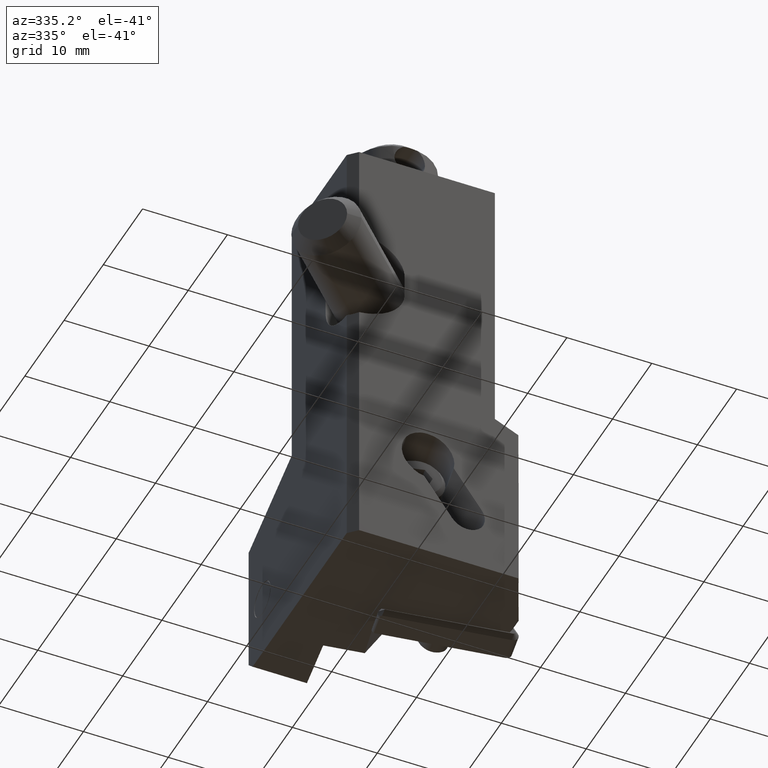
[diagram: clean part render]
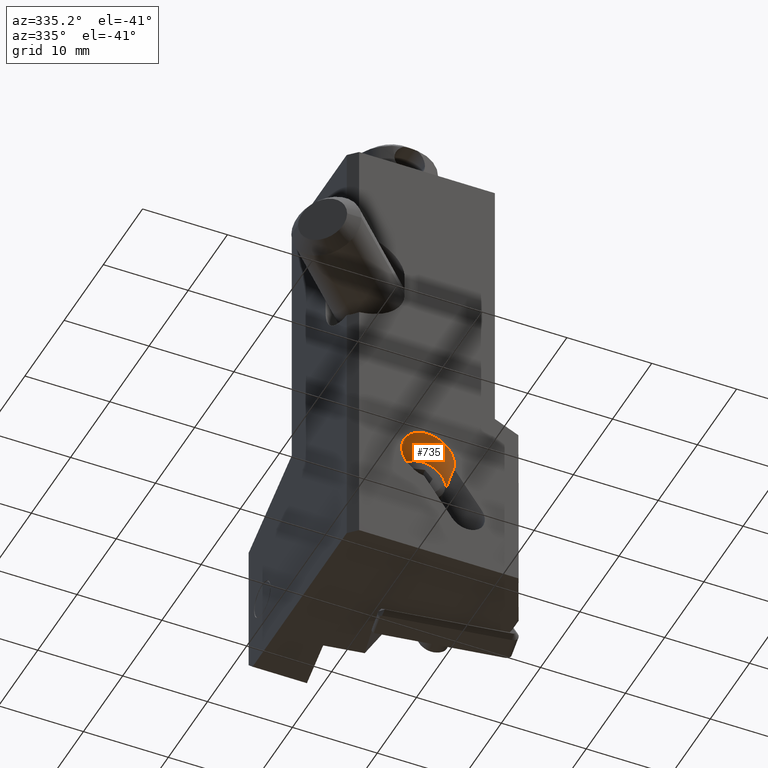
[diagram: same view with one face highlighted and labeled with its STEP entity id]
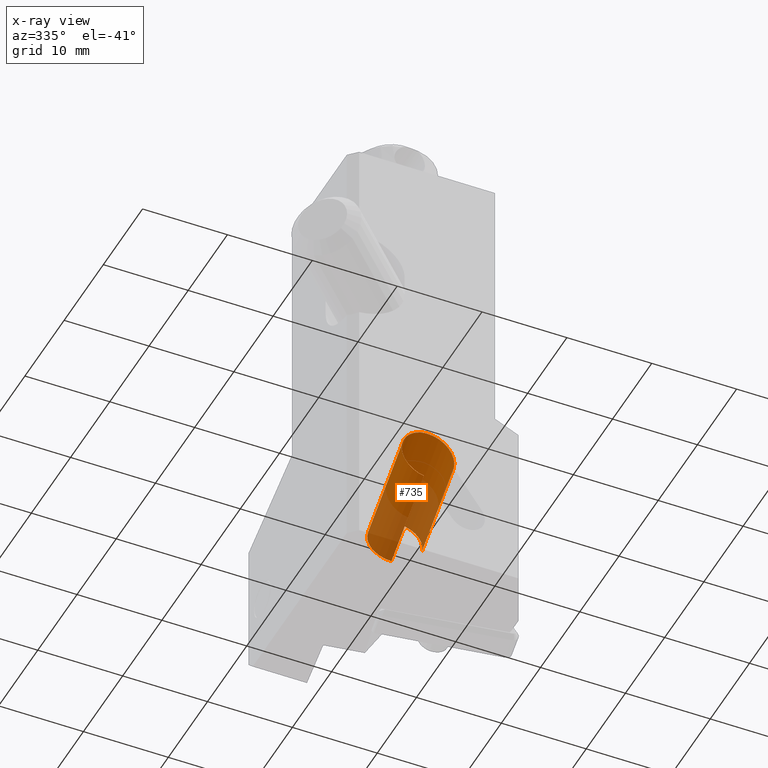
[diagram: x-ray of the same camera — body ghosted, the highlighted face saturated]
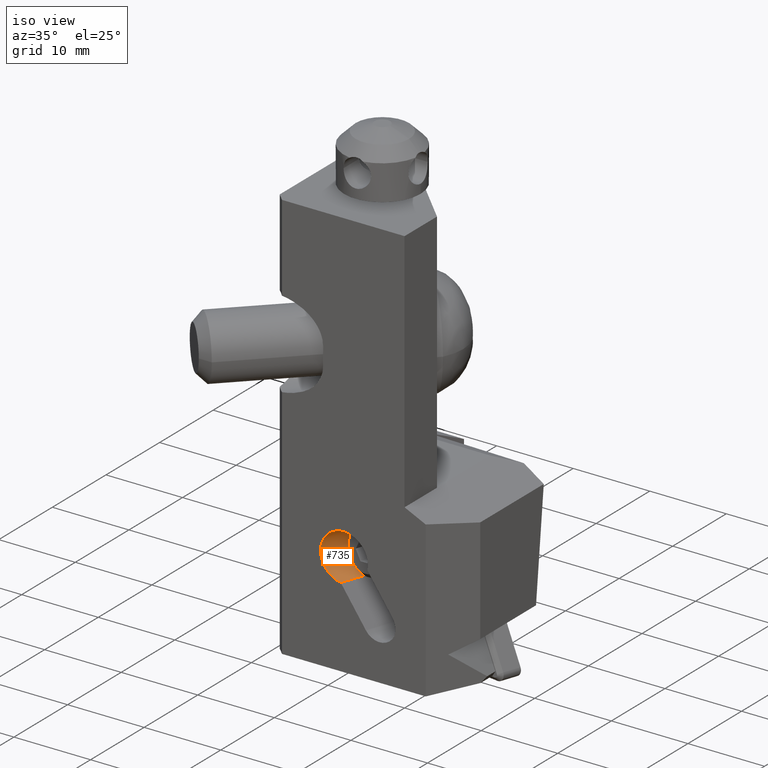
[diagram: same view with one face highlighted and labeled with its STEP entity id]
A machine part, auxiliary view. The second image highlights one B-rep face of the part: STEP entity #735.
The next image is the same camera in x-ray: the body ghosted, the highlighted face saturated — about 44% of this face is hidden behind the body in this view.
A second angle (iso view) of the same face is appended — the face is thin or edge-on in the first view.
In plain terms, the highlighted cylindrical surface (edge-blend (fillet) strip) has radius 3.0625 mm, axis along (-0.1556, -0.9824, 0.1033).
Its self-contained STEP definition (entity closure, byte-faithful):
#237=CYLINDRICAL_SURFACE('',#4335,3.062500000018);
#324=FACE_OUTER_BOUND('',#1119,.T.);
#533=CIRCLE('',#4333,3.062500000018);
#534=CIRCLE('',#4334,3.062500000018);
#735=ADVANCED_FACE('',(#324),#237,.F.);
#1119=EDGE_LOOP('',(#1596,#1597,#1598,#1599,#1600,#1601));
#1328=ELLIPSE('',#4261,3.11733698417095,3.062500000018);
#1329=ELLIPSE('',#4262,3.11733698417095,3.062500000018);
#1596=ORIENTED_EDGE('',*,*,#3023,.T.);
#1597=ORIENTED_EDGE('',*,*,#2910,.T.);
#1598=ORIENTED_EDGE('',*,*,#2909,.F.);
#1599=ORIENTED_EDGE('',*,*,#3042,.F.);
#1600=ORIENTED_EDGE('',*,*,#3043,.T.);
#1601=ORIENTED_EDGE('',*,*,#3044,.T.);
#2536=VERTEX_POINT('',#5967);
#2537=VERTEX_POINT('',#5968);
#2538=VERTEX_POINT('',#5970);
#2617=VERTEX_POINT('',#6271);
#2626=VERTEX_POINT('',#6329);
#2627=VERTEX_POINT('',#6333);
#2909=EDGE_CURVE('',#2536,#2537,#1328,.T.);
#2910=EDGE_CURVE('',#2538,#2537,#1329,.T.);
#3023=EDGE_CURVE('',#2617,#2538,#3577,.T.);
#3042=EDGE_CURVE('',#2626,#2536,#3590,.T.);
#3043=EDGE_CURVE('',#2626,#2627,#533,.T.);
#3044=EDGE_CURVE('',#2627,#2617,#534,.T.);
#3577=LINE('',#6270,#3879);
#3590=LINE('',#6330,#3892);
#3879=VECTOR('',#4956,1.);
#3892=VECTOR('',#4995,1.);
#4261=AXIS2_PLACEMENT_3D('',#5966,#4761,#4762);
#4262=AXIS2_PLACEMENT_3D('',#5969,#4763,#4764);
#4333=AXIS2_PLACEMENT_3D('',#6332,#4998,#4999);
#4334=AXIS2_PLACEMENT_3D('',#6334,#5000,#5001);
#4335=AXIS2_PLACEMENT_3D('',#6335,#5002,#5003);
#4761=DIRECTION('',(0.,1.,0.));
#4762=DIRECTION('',(-0.833226974346295,0.,0.552931107120696));
#4763=DIRECTION('',(0.,-1.,0.));
#4764=DIRECTION('',(-0.833226974346295,0.,0.552931107120696));
#4956=DIRECTION('',(-0.155598304244507,-0.982409029106544,0.103255349721805));
#4995=DIRECTION('',(-0.155598304244803,-0.982409029106518,0.103255349721602));
#4998=DIRECTION('',(0.155598304244495,0.982409029106767,-0.103255349719697));
#4999=DIRECTION('',(-0.162645823984999,-0.0776227408353395,-0.983626476893262));
#5000=DIRECTION('',(0.155598304244495,0.982409029106767,-0.103255349719697));
#5001=DIRECTION('',(-9.15933995310371E-13,0.104528463265128,0.994521895368539));
#5002=DIRECTION('',(-0.155598304244495,-0.982409029106767,0.103255349719697));
#5003=DIRECTION('',(1.15553825011327E-12,-0.104528463265165,-0.994521895368535));
#5966=CARTESIAN_POINT('',(-7.87668417024118,0.,-40.0760911803074));
#5967=CARTESIAN_POINT('',(-8.33713591344843,-1.55218199403829E-12,-43.1134326071638));
#5968=CARTESIAN_POINT('',(-7.927385946836,0.,-36.99672207413));
#5969=CARTESIAN_POINT('',(-7.87668417024118,0.,-40.0760911803074));
#5970=CARTESIAN_POINT('',(-4.84327747635519,-1.66184427330245E-12,-40.7632127117714));
#6270=CARTESIAN_POINT('',(-2.878288517453,12.40645201566,-42.06718336322));
#6271=CARTESIAN_POINT('',(-2.87828851744,12.40645201566,-42.06718336322));
#6329=CARTESIAN_POINT('',(-6.325317206528,12.70212340817,-44.44847957421));
#6330=CARTESIAN_POINT('',(-6.325317206527,12.70212340817,-44.4484795742));
#6332=CARTESIAN_POINT('',(-5.827214370571,12.93984305198,-41.43612348871));
#6333=CARTESIAN_POINT('',(-5.827214370573,13.25996147073,-38.39040018413));
#6334=CARTESIAN_POINT('',(-5.82721437057,12.93984305198,-41.43612348871));
#6335=CARTESIAN_POINT('',(-5.784413381184,13.21007786355,-41.46452631192));